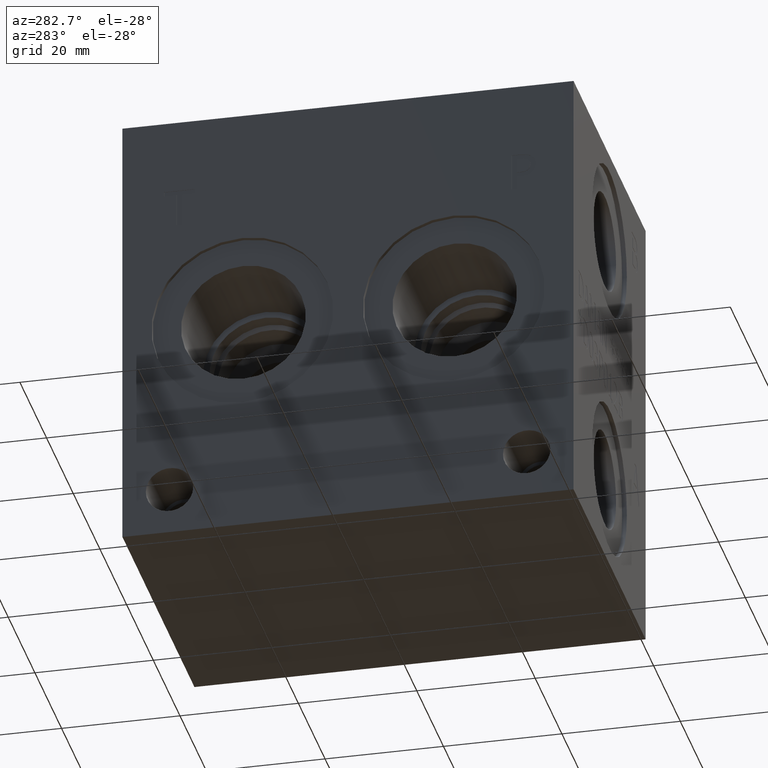
[diagram: clean part render]
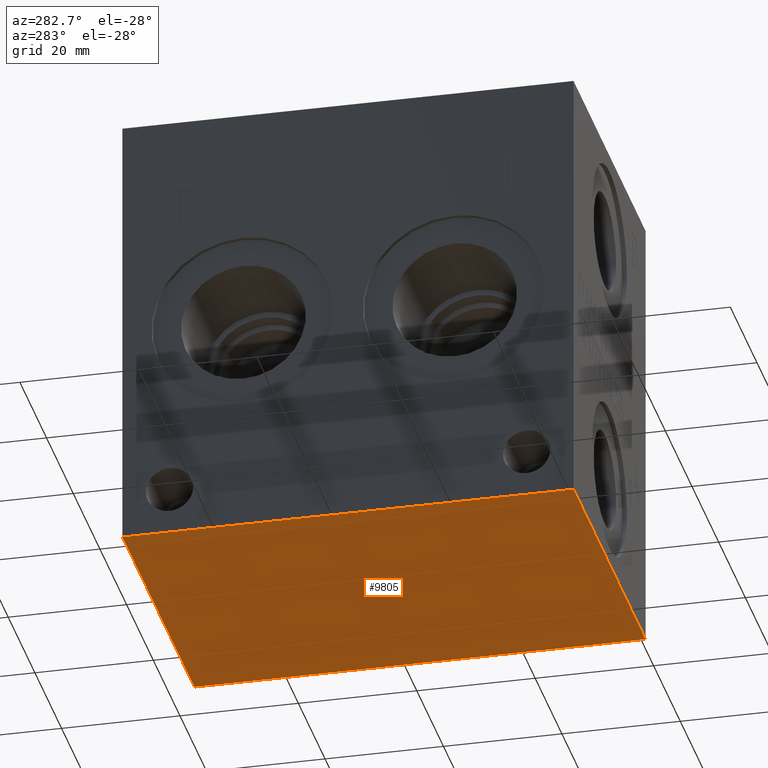
[diagram: same view with one face highlighted and labeled with its STEP entity id]
A machine part, auxiliary view. The second image highlights one B-rep face of the part: STEP entity #9805.
In plain terms, the highlighted planar face has unit normal (0, 0, 1).
Its self-contained STEP definition (entity closure, byte-faithful):
#1200=FACE_OUTER_BOUND('',#1776,.T.);
#1776=EDGE_LOOP('',(#8607,#8608,#8609,#8610));
#2060=LINE('',#14421,#2991);
#2509=LINE('',#15648,#3440);
#2633=LINE('',#16263,#3564);
#2706=LINE('',#16764,#3637);
#2991=VECTOR('',#10805,10.);
#3440=VECTOR('',#11580,10.);
#3564=VECTOR('',#11810,10.);
#3637=VECTOR('',#12387,10.);
#3941=VERTEX_POINT('',#14419);
#3942=VERTEX_POINT('',#14420);
#4277=VERTEX_POINT('',#15647);
#4387=VERTEX_POINT('',#16262);
#5017=EDGE_CURVE('',#3941,#3942,#2060,.T.);
#5508=EDGE_CURVE('',#3942,#4277,#2509,.T.);
#5678=EDGE_CURVE('',#4387,#3941,#2633,.T.);
#5911=EDGE_CURVE('',#4277,#4387,#2706,.T.);
#8607=ORIENTED_EDGE('',*,*,#5017,.F.);
#8608=ORIENTED_EDGE('',*,*,#5678,.F.);
#8609=ORIENTED_EDGE('',*,*,#5911,.F.);
#8610=ORIENTED_EDGE('',*,*,#5508,.F.);
#8916=PLANE('',#10367);
#9805=ADVANCED_FACE('',(#1200),#8916,.F.);
#10367=AXIS2_PLACEMENT_3D('',#16769,#12395,#12396);
#10805=DIRECTION('',(1.,0.,0.));
#11580=DIRECTION('',(0.,1.,0.));
#11810=DIRECTION('',(0.,-1.,0.));
#12387=DIRECTION('',(-1.,0.,0.));
#12395=DIRECTION('center_axis',(0.,0.,1.));
#12396=DIRECTION('ref_axis',(1.,0.,0.));
#14419=CARTESIAN_POINT('',(0.,0.,0.));
#14420=CARTESIAN_POINT('',(53.975,0.,0.));
#14421=CARTESIAN_POINT('',(0.,0.,0.));
#15647=CARTESIAN_POINT('',(53.975,76.2,0.));
#15648=CARTESIAN_POINT('',(53.975,0.,0.));
#16262=CARTESIAN_POINT('',(0.,76.2,0.));
#16263=CARTESIAN_POINT('',(0.,76.2,0.));
#16764=CARTESIAN_POINT('',(53.975,76.2,0.));
#16769=CARTESIAN_POINT('Origin',(26.9875,38.1,0.));